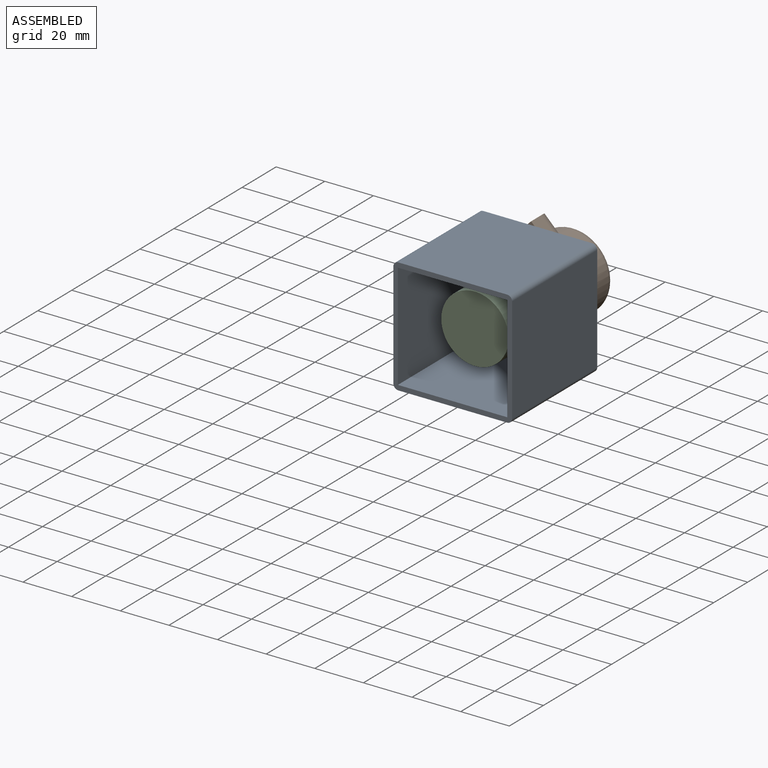
[diagram: assembled view]
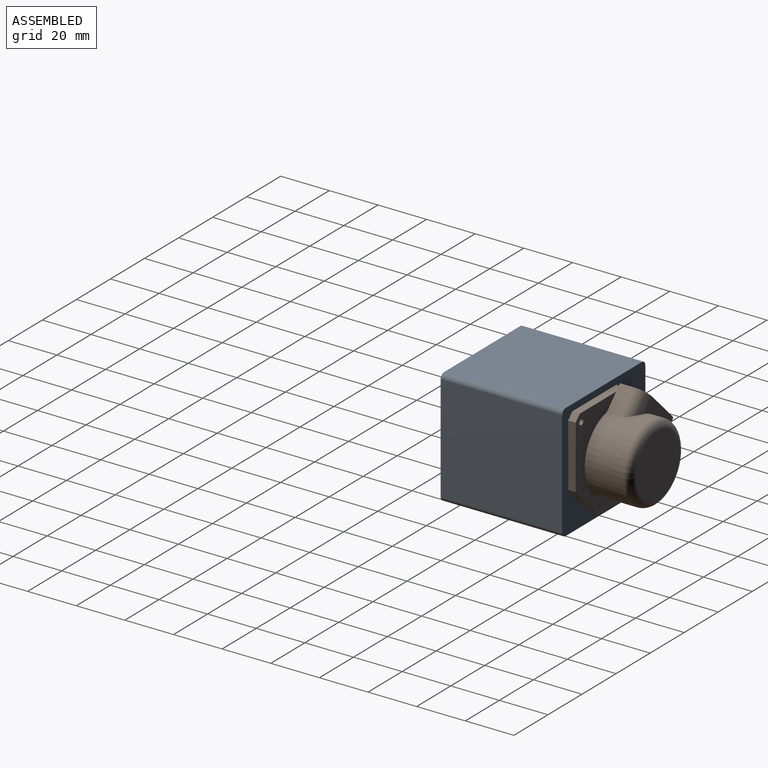
[diagram: assembled view, second angle]
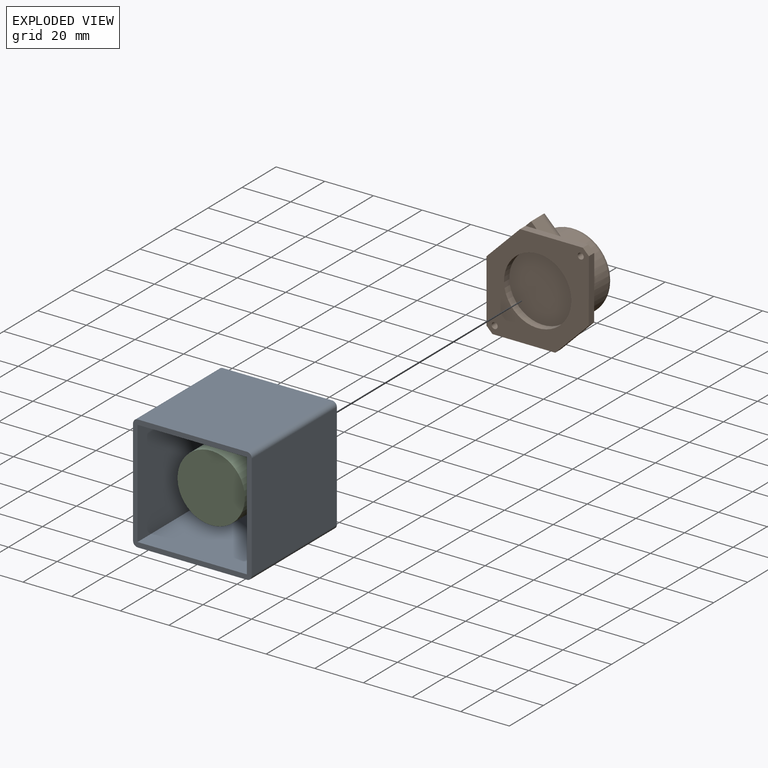
[diagram: exploded view]
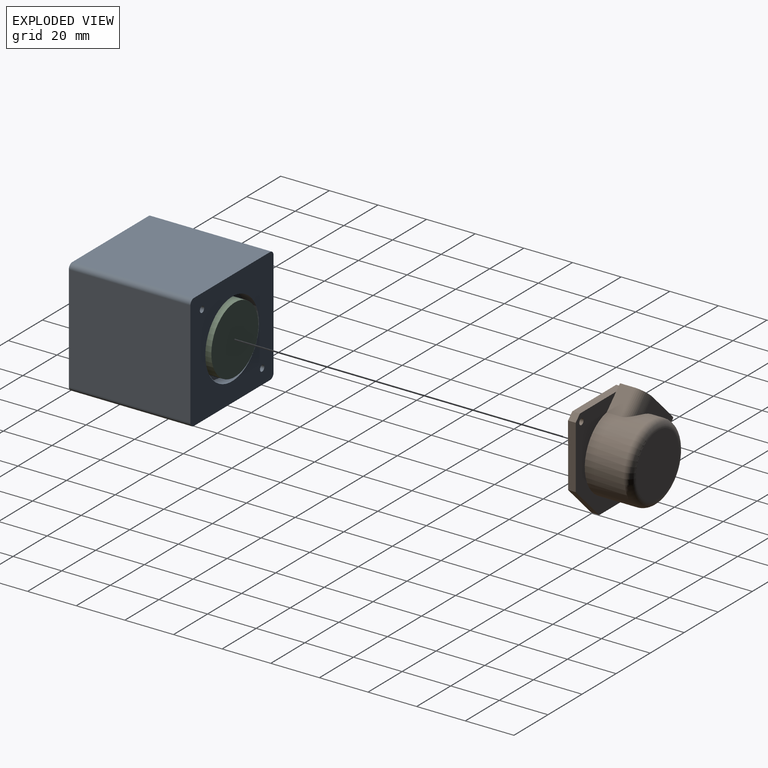
[diagram: exploded view, second angle]
ASSEMBLY  parts=3 mates=2
PART A: 18 faces, bbox 48.8x50x47.6 mm
  f0: plane 50x43.59mm, normal (-1,0,0), area 2179.4mm2, adj f8,f13,f14,f17
  f1: plane 50x44.84mm, normal (0,0,-1), area 2241.9mm2, adj f8,f13,f14,f15
  f2: plane 50x43.59mm, normal (1,0,0), area 2179.4mm2, adj f8,f13,f15,f16
  f3: cylinder r=1.25mm len=5mm, axis (0,1,0), area 39.3mm2, adj f7,f8
  f4: cylinder r=1.25mm len=5mm, axis (0,1,0), area 39.3mm2, adj f7,f8
  f5: cylinder r=15.75mm len=31.5mm, axis (0,1,0), area 494.8mm2, adj f7,f8
  f6: plane 50x44.84mm, normal (0,0,1), area 2241.9mm2, adj f8,f13,f16,f17
  f7: plane 45x43.59mm, normal (0,-1,0), area 1172.3mm2, adj f3,f4,f5,f9,f10,f11,f12
  f8: plane 48.84x47.59mm, normal (0,1,0), area 1531.5mm2, adj f0,f1,f2,f3,f4,f5,f6,f14
  f9: plane 45x45mm, normal (0,0,-1), area 2025mm2, adj f7,f10,f12,f13
  f10: plane 45x43.59mm, normal (-1,0,0), area 1961.5mm2, adj f7,f9,f11,f13
  f11: plane 45x45mm, normal (0,0,1), area 2025mm2, adj f7,f10,f12,f13
  f12: plane 45x43.59mm, normal (1,0,0), area 1961.5mm2, adj f7,f9,f11,f13
  f13: plane 48.84x47.59mm, normal (0,-1,0), area 359.2mm2, adj f0,f1,f2,f6,f9,f10,f11,f12
  f14: cylinder r=2mm len=50mm, axis (0,1,0), area 157.1mm2, adj f0,f1,f8,f13
  f15: cylinder r=2mm len=50mm, axis (0,-1,0), area 157.1mm2, adj f1,f2,f8,f13
  f16: cylinder r=2mm len=50mm, axis (0,1,0), area 157.1mm2, adj f2,f6,f8,f13
  f17: cylinder r=2mm len=50mm, axis (0,-1,0), area 157.1mm2, adj f0,f6,f8,f13
PART B: 24 faces, bbox 56x22.2x40 mm
  f0: plane 18.25x18.25mm, normal (-0.71,0,-0.71), area 81.3mm2, adj f1,f10,f11,f12
  f1: plane 19.5x3.15mm, normal (0,0,-1), area 61.4mm2, adj f0,f2,f11,f12
  f2: plane 18.25x18.25mm, normal (0.71,0,-0.71), area 81.3mm2, adj f1,f3,f11,f12
  f3: plane 3.5x3.15mm, normal (1,0,0), area 11mm2, adj f2,f4,f11,f12
  f4: plane 18.25x18.25mm, normal (0.71,0,0.71), area 81.3mm2, adj f3,f5,f11,f12
  f5: plane 19.5x3.15mm, normal (0,0,1), area 61.4mm2, adj f4,f6,f11,f12
  f6: plane 18.25x18.25mm, normal (-0.71,0,0.71), area 81.3mm2, adj f5,f10,f11,f12
  f7: cylinder r=1.25mm len=3.15mm, axis (0,-1,0), area 24.7mm2, adj f11,f12
  f8: cylinder r=1.25mm len=3.15mm, axis (0,-1,0), area 24.7mm2, adj f11,f12
  f9: cylinder r=13.85mm len=27.7mm, axis (0,-1,0), area 274.1mm2, adj f12,f15
  f10: plane 3.5x3.15mm, normal (-1,0,0), area 11mm2, adj f0,f6,f11,f12
  f11: plane 56x40mm, normal (0,1,0), area 784.7mm2, adj f0,f1,f2,f3,f4,f5,f6,f7
  f12: plane 56x40mm, normal (0,-1,0), area 961.4mm2, adj f0,f1,f2,f3,f4,f5,f6,f7
  f13: plane 25.5x25.5mm, normal (0,1,0), area 510.7mm2, adj f16
  f14: cylinder r=15.75mm len=31.5mm, axis (0,-1,0), area 1266.7mm2, adj f11,f16,f17,f18,f19,f20,f22,f23
  f15: plane 27.7x27.7mm, normal (0,-1,0), area 602.6mm2, adj f9
  f16: torus R=12.75mm, axis (0,1,0), area 434.1mm2, adj f13,f14
  f17: plane 11.11x5.9mm, normal (-1,0,0), area 65.5mm2, adj f14,f19,f21,f23
  f18: plane 11.11x5.9mm, normal (1,0,0), area 65.5mm2, adj f14,f19,f21,f22
  f19: plane 26x11.11mm, normal (0,-1,0), area 163.6mm2, adj f14,f17,f18,f21
  f20: plane 16x6.43mm, normal (0,1,0), area 79.3mm2, adj f14,f21,f22,f23
  f21: plane 26x10.9mm, normal (0,0,1), area 272.6mm2, adj f17,f18,f19,f20,f22,f23
  f22: cylinder r=5mm len=11.11mm, axis (0,0,1), area 71.6mm2, adj f14,f18,f20,f21
  f23: cylinder r=5mm len=11.11mm, axis (0,0,-1), area 71.6mm2, adj f14,f17,f20,f21
PART C: 3 faces, bbox 27.7x40x27.7 mm
  f0: cylinder r=13.85mm len=40mm, axis (0,1,0), area 3480.9mm2, adj f1,f2
  f1: plane 27.7x27.7mm, normal (0,-1,0), area 602.6mm2, adj f0
  f2: plane 27.7x27.7mm, normal (0,1,0), area 602.6mm2, adj f0
PLACE A t=(0.08,25.03,-0.02)mm fixed
PLACE B rot(axis=(0,-1,0),44.9deg) t=(0.07,25.03,0.04)mm
PLACE C rot(axis=(0,-1,0),44.9deg) t=(0.07,28.18,0.04)mm
MATE revolute A.f4 <-> B.f8  axis (0,1,0) through (17.77,25.03,17.7)mm
MATE fastened B.f9 <-> C.f0  axis (0,-1,0) through (0.07,28.18,0.04)mm
